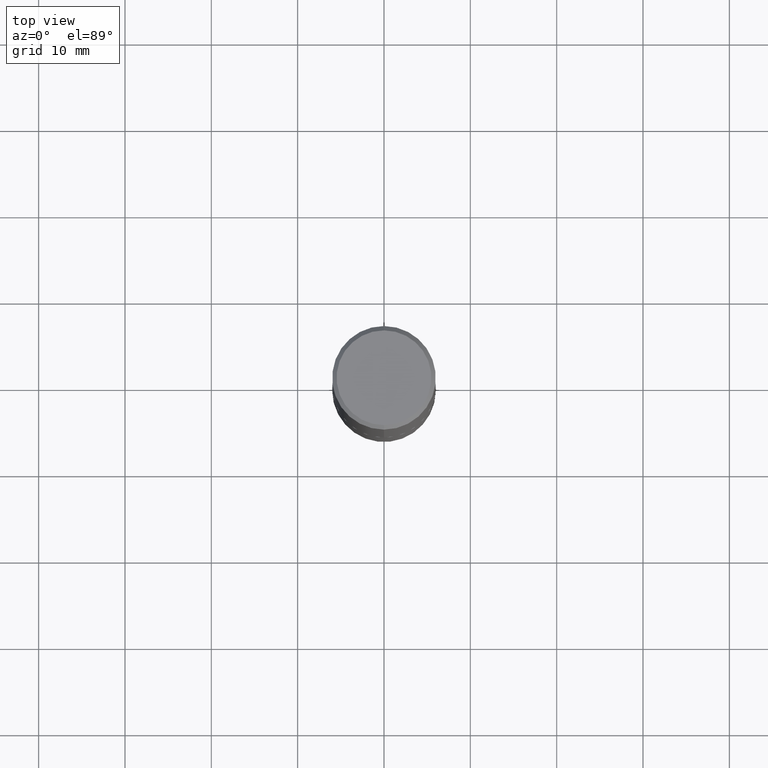
[diagram: clean part render]
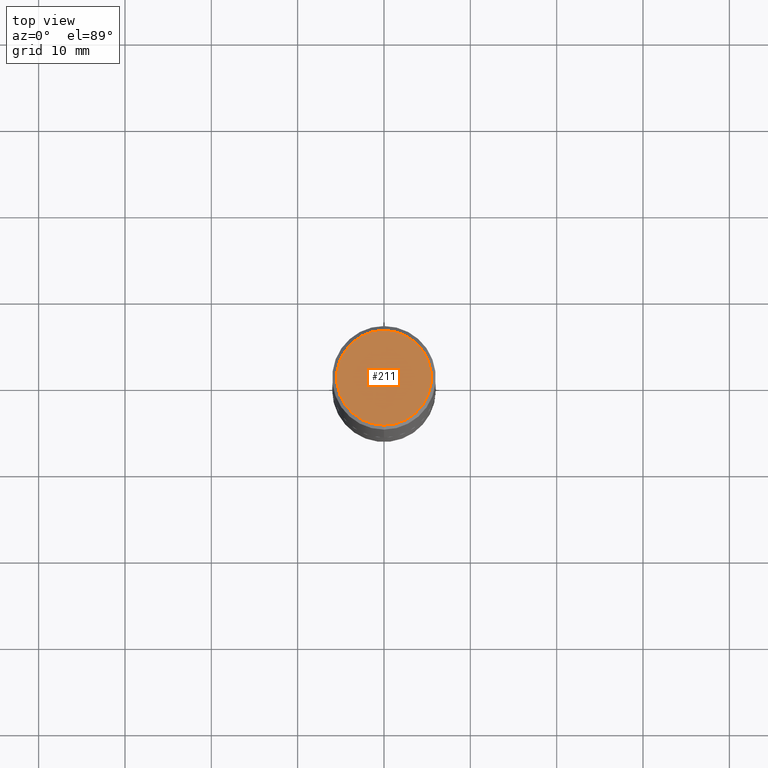
[diagram: same view with one face highlighted and labeled with its STEP entity id]
A machine part, top view. The second image highlights one B-rep face of the part: STEP entity #211.
In plain terms, the highlighted planar face has unit normal (0, -0, -1).
Its self-contained STEP definition (entity closure, byte-faithful):
#6 = DIRECTION ( 'NONE',  ( 6.982962677686265922E-15, 1.000000000000000000, -3.491947543401873041E-15 ) ) ;
#15 = VERTEX_POINT ( 'NONE', #399 ) ;
#24 = CARTESIAN_POINT ( 'NONE',  ( 1.579546157692632438E-15, 0.2161999999999996980, -5.072845410320630762E-16 ) ) ;
#63 = DIRECTION ( 'NONE',  ( -2.445143257281760563E-29, 3.491947543401872647E-15, 1.000000000000000000 ) ) ;
#82 = ORIENTED_EDGE ( 'NONE', *, *, #299, .T. ) ;
#97 = PLANE ( 'NONE',  #179 ) ;
#112 = VERTEX_POINT ( 'NONE', #24 ) ;
#171 = AXIS2_PLACEMENT_3D ( 'NONE', #362, #63, #295 ) ;
#179 = AXIS2_PLACEMENT_3D ( 'NONE', #196, #319, #6 ) ;
#196 = CARTESIAN_POINT ( 'NONE',  ( 1.509716530915768548E-15, 0.2161999999999996980, -6.311217999577736163E-16 ) ) ;
#199 = CIRCLE ( 'NONE', #171, 0.2161999999999996980 ) ;
#211 = ADVANCED_FACE ( 'NONE', ( #287 ), #97, .F. ) ;
#226 = CIRCLE ( 'NONE', #346, 0.2161999999999996980 ) ;
#237 = DIRECTION ( 'NONE',  ( -2.445143257281760563E-29, 3.491947543401872647E-15, 1.000000000000000000 ) ) ;
#242 = ORIENTED_EDGE ( 'NONE', *, *, #283, .T. ) ;
#255 = EDGE_LOOP ( 'NONE', ( #82, #242 ) ) ;
#265 = CARTESIAN_POINT ( 'NONE',  ( -6.055996773249123304E-45, 8.648664241745118212E-31, 2.476745178514206857E-16 ) ) ;
#283 = EDGE_CURVE ( 'NONE', #15, #112, #226, .T. ) ;
#287 = FACE_OUTER_BOUND ( 'NONE', #255, .T. ) ;
#295 = DIRECTION ( 'NONE',  ( -6.982962677686265922E-15, -1.000000000000000000, 3.491947543401872253E-15 ) ) ;
#299 = EDGE_CURVE ( 'NONE', #112, #15, #199, .T. ) ;
#319 = DIRECTION ( 'NONE',  ( 2.445143257281760283E-29, -3.491947543401873041E-15, -1.000000000000000000 ) ) ;
#346 = AXIS2_PLACEMENT_3D ( 'NONE', #265, #237, #391 ) ;
#362 = CARTESIAN_POINT ( 'NONE',  ( -6.055996773249123304E-45, 8.648664241745118212E-31, 2.476745178514206857E-16 ) ) ;
#391 = DIRECTION ( 'NONE',  ( -6.982962677686265922E-15, -1.000000000000000000, 3.491947543401872253E-15 ) ) ;
#399 = CARTESIAN_POINT ( 'NONE',  ( -1.551844647095918761E-15, -0.2161999999999996980, 1.002633576734904349E-15 ) ) ;